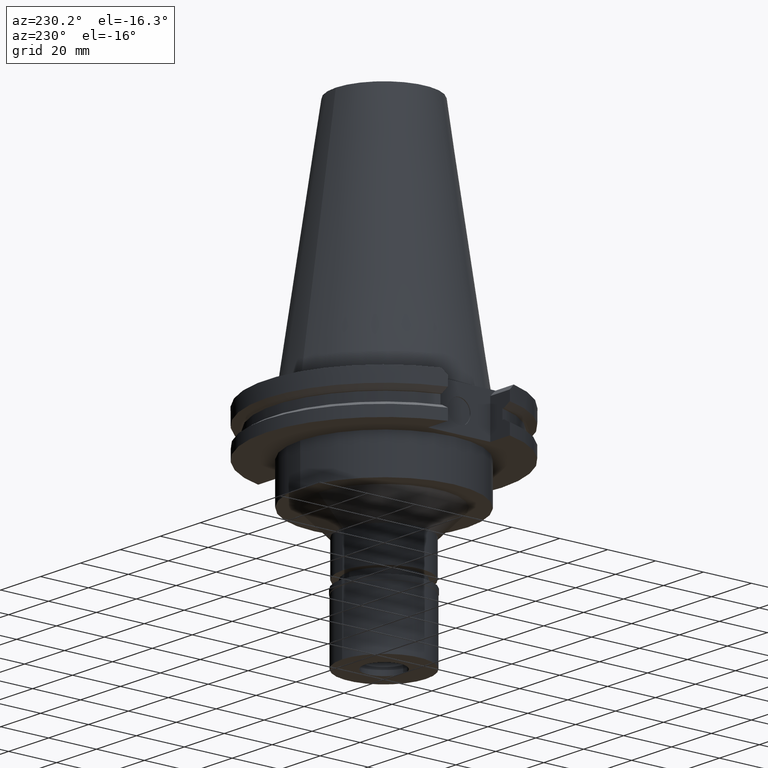
[diagram: clean part render]
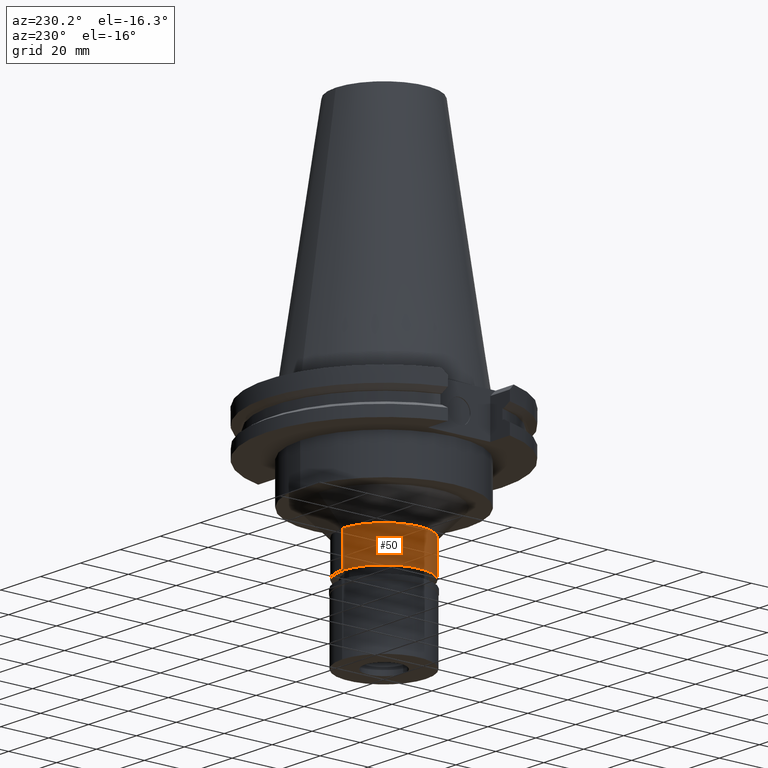
[diagram: same view with one face highlighted and labeled with its STEP entity id]
A machine part, auxiliary view. The second image highlights one B-rep face of the part: STEP entity #50.
In plain terms, the highlighted cylindrical surface (partial cylindrical patch) has radius 17.25 mm, axis along (0, 0, -1).
Its self-contained STEP definition (entity closure, byte-faithful):
#50 = ADVANCED_FACE ( 'NONE', ( #1998 ), #1984, .T. ) ;
#76 = EDGE_LOOP ( 'NONE', ( #2111, #2731, #2229, #1931 ) ) ;
#88 = CIRCLE ( 'NONE', #1276, 17.25000000000000000 ) ;
#119 = DIRECTION ( 'NONE',  ( 0.0000000000000000000, -1.000000000000000000, 0.0000000000000000000 ) ) ;
#196 = DIRECTION ( 'NONE',  ( 0.0000000000000000000, 0.0000000000000000000, -1.000000000000000000 ) ) ;
#464 = CIRCLE ( 'NONE', #739, 17.25000000000000000 ) ;
#691 = LINE ( 'NONE', #2194, #3207 ) ;
#704 = CARTESIAN_POINT ( 'NONE',  ( 0.0000000000000000000, 0.0000000000000000000, -45.00000000000000000 ) ) ;
#714 = DIRECTION ( 'NONE',  ( 0.0000000000000000000, 0.0000000000000000000, -1.000000000000000000 ) ) ;
#739 = AXIS2_PLACEMENT_3D ( 'NONE', #704, #1741, #119 ) ;
#907 = CARTESIAN_POINT ( 'NONE',  ( 0.0000000000000000000, 17.25000000000000000, -45.00000000000000000 ) ) ;
#997 = EDGE_CURVE ( 'NONE', #1796, #1971, #88, .T. ) ;
#1028 = DIRECTION ( 'NONE',  ( 0.0000000000000000000, -1.000000000000000000, 0.0000000000000000000 ) ) ;
#1155 = CARTESIAN_POINT ( 'NONE',  ( 0.0000000000000000000, -17.25000000000000000, -45.00000000000000000 ) ) ;
#1168 = DIRECTION ( 'NONE',  ( 0.0000000000000000000, 0.0000000000000000000, 1.000000000000000000 ) ) ;
#1276 = AXIS2_PLACEMENT_3D ( 'NONE', #1401, #1168, #2964 ) ;
#1401 = CARTESIAN_POINT ( 'NONE',  ( 0.0000000000000000000, 2.578799997304999674E-14, -59.10000000000000142 ) ) ;
#1448 = CARTESIAN_POINT ( 'NONE',  ( 0.0000000000000000000, 17.25000000000000000, -59.10000000000000142 ) ) ;
#1741 = DIRECTION ( 'NONE',  ( 0.0000000000000000000, 0.0000000000000000000, -1.000000000000000000 ) ) ;
#1751 = AXIS2_PLACEMENT_3D ( 'NONE', #3009, #714, #1028 ) ;
#1761 = EDGE_CURVE ( 'NONE', #3278, #2343, #464, .T. ) ;
#1796 = VERTEX_POINT ( 'NONE', #1448 ) ;
#1921 = LINE ( 'NONE', #2327, #2262 ) ;
#1931 = ORIENTED_EDGE ( 'NONE', *, *, #2652, .T. ) ;
#1971 = VERTEX_POINT ( 'NONE', #3302 ) ;
#1984 = CYLINDRICAL_SURFACE ( 'NONE', #1751, 17.25000000000000000 ) ;
#1998 = FACE_OUTER_BOUND ( 'NONE', #76, .T. ) ;
#2111 = ORIENTED_EDGE ( 'NONE', *, *, #997, .T. ) ;
#2194 = CARTESIAN_POINT ( 'NONE',  ( 0.0000000000000000000, -17.25000000000000000, -45.00000000000000000 ) ) ;
#2229 = ORIENTED_EDGE ( 'NONE', *, *, #1761, .T. ) ;
#2262 = VECTOR ( 'NONE', #2850, 1000.000000000000000 ) ;
#2327 = CARTESIAN_POINT ( 'NONE',  ( 0.0000000000000000000, 17.25000000000000000, -45.00000000000000000 ) ) ;
#2343 = VERTEX_POINT ( 'NONE', #907 ) ;
#2652 = EDGE_CURVE ( 'NONE', #2343, #1796, #1921, .T. ) ;
#2731 = ORIENTED_EDGE ( 'NONE', *, *, #3289, .F. ) ;
#2850 = DIRECTION ( 'NONE',  ( 0.0000000000000000000, 0.0000000000000000000, -1.000000000000000000 ) ) ;
#2964 = DIRECTION ( 'NONE',  ( 0.0000000000000000000, 1.000000000000000000, 0.0000000000000000000 ) ) ;
#3009 = CARTESIAN_POINT ( 'NONE',  ( 0.0000000000000000000, 2.578799997304999674E-14, 110.5750000000000028 ) ) ;
#3207 = VECTOR ( 'NONE', #196, 1000.000000000000000 ) ;
#3278 = VERTEX_POINT ( 'NONE', #1155 ) ;
#3289 = EDGE_CURVE ( 'NONE', #3278, #1971, #691, .T. ) ;
#3302 = CARTESIAN_POINT ( 'NONE',  ( 0.0000000000000000000, -17.25000000000000000, -59.10000000000000142 ) ) ;